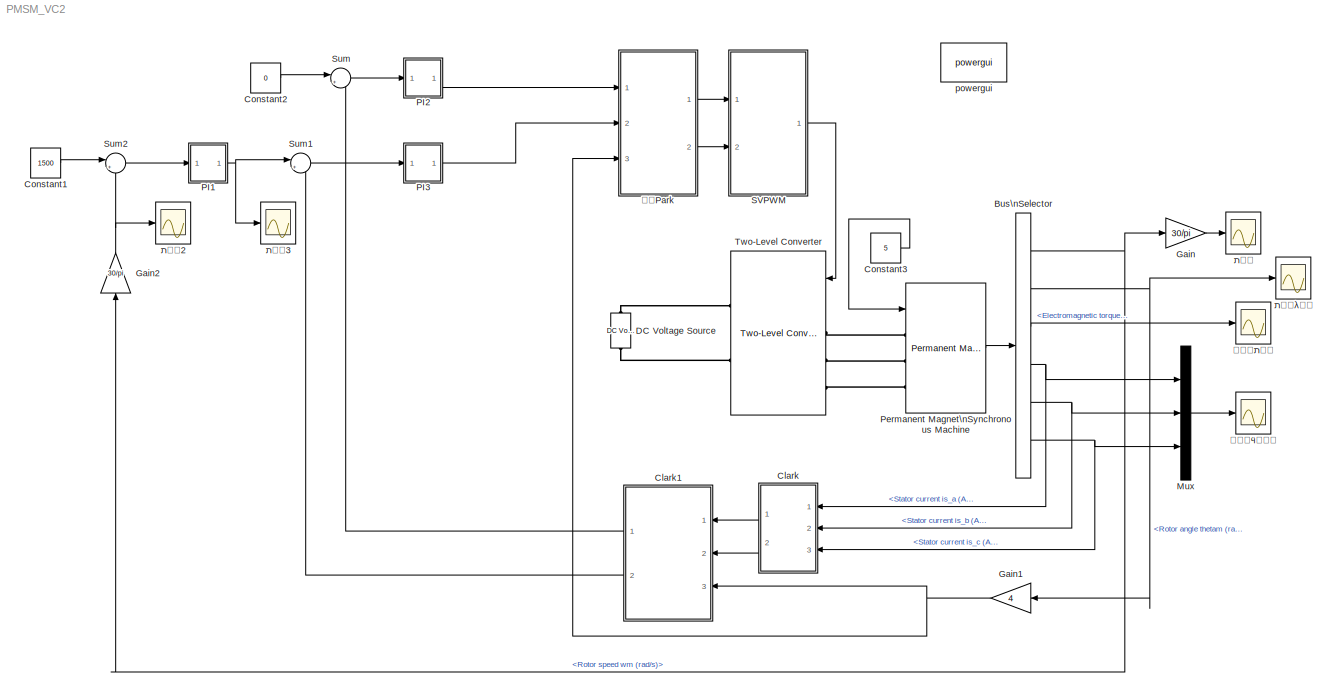
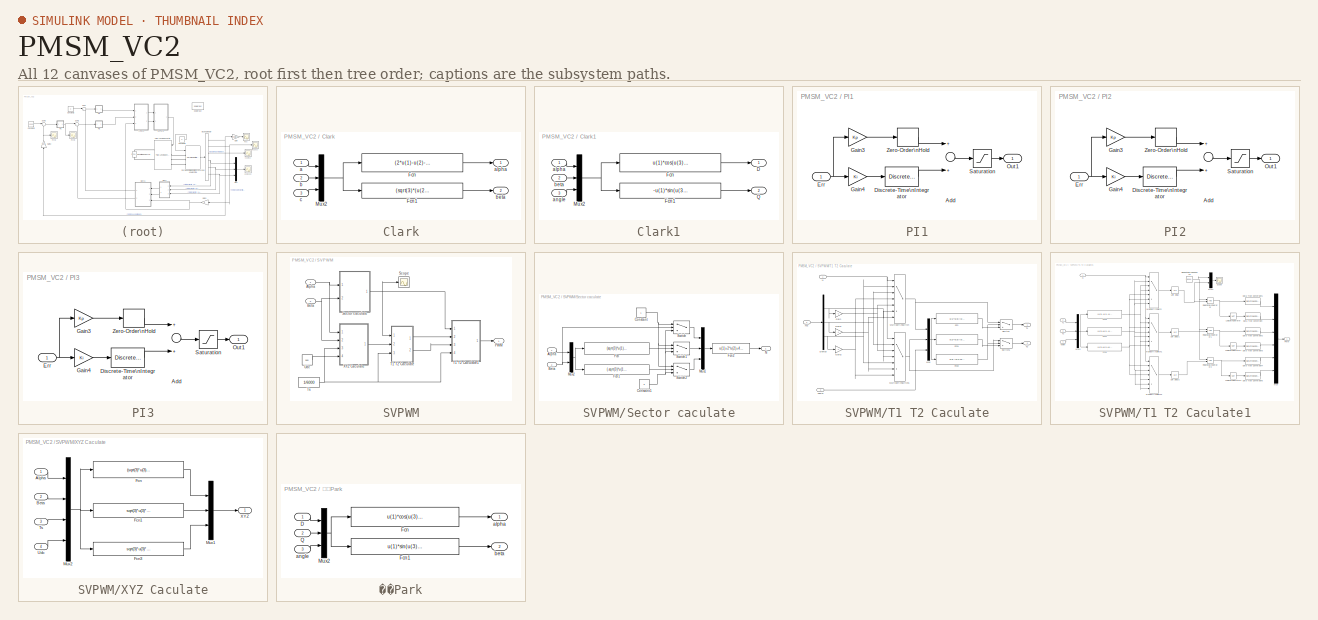
[diagram: thumbnail index - all 12 canvases of the model, root first then tree order]
MODEL PMSM_VC2
KIND model
BLOCK [BusSelector] Bus\nSelector
  OutputSignals = Rotor speed wm (rad/s),Rotor angle thetam (rad),Electromagnetic torque Te (N*m),Stator current is_a (A),Stator current is_b (A),Stator current is_c (A)
  Ports = [1, 6]
  SID = 1
BLOCK [SubSystem] Clark
  FunctionWithSeparateData = off
  MaskHideContents = off
  MinAlgLoopOccurrences = off
  Opaque = off
  Ports = [3, 2]
  PropExecContextOutsideSubsystem = off
  RTWSystemCode = Auto
  RequestExecContextInheritance = off
  SID = 40
BLOCK [Fcn] Clark/Fcn
  Expr = (2*u(1)-u(2)-u(3))/3
  SID = 44
BLOCK [Fcn] Clark/Fcn1
  Expr = (sqrt(3)*(u(2)-u(3)))/3
  SID = 45
BLOCK [Mux] Clark/Mux2
  DisplayOption = bar
  Inputs = 3
  Ports = [3, 1]
  SID = 46
BLOCK [Inport] Clark/a
  IconDisplay = Port number
  SID = 41
BLOCK [Outport] Clark/alpha
  IconDisplay = Port number
  SID = 48
BLOCK [Inport] Clark/b
  IconDisplay = Port number
  Port = 2
  SID = 42
BLOCK [Outport] Clark/beta
  IconDisplay = Port number
  Port = 2
  SID = 47
BLOCK [Inport] Clark/c
  IconDisplay = Port number
  Port = 3
  SID = 43
BLOCK [SubSystem] Clark1
  FunctionWithSeparateData = off
  MaskHideContents = off
  MinAlgLoopOccurrences = off
  Opaque = off
  Ports = [3, 2]
  PropExecContextOutsideSubsystem = off
  RTWSystemCode = Auto
  RequestExecContextInheritance = off
  SID = 49
BLOCK [Outport] Clark1/D
  IconDisplay = Port number
  SID = 57
BLOCK [Fcn] Clark1/Fcn
  Expr = u(1)*cos(u(3))+u(2)*sin(u(3))
  SID = 53
BLOCK [Fcn] Clark1/Fcn1
  Expr = -u(1)*sin(u(3))+u(2)*cos(u(3))
  SID = 54
BLOCK [Mux] Clark1/Mux2
  DisplayOption = bar
  Inputs = 3
  Ports = [3, 1]
  SID = 55
BLOCK [Outport] Clark1/Q
  IconDisplay = Port number
  Port = 2
  SID = 56
BLOCK [Inport] Clark1/alpha
  IconDisplay = Port number
  SID = 50
BLOCK [Inport] Clark1/angle
  IconDisplay = Port number
  Port = 3
  SID = 52
BLOCK [Inport] Clark1/beta
  IconDisplay = Port number
  Port = 2
  SID = 51
BLOCK [Constant] Constant1
  SID = 3
  Value = 1500
BLOCK [Constant] Constant2
  SID = 4
  Value = 0
BLOCK [Constant] Constant3
  SID = 195
  Value = 5
BLOCK [Reference] DC Voltage Source  REF=powerlib/Electrical\nSources/DC Voltage Source
  Amplitude = 560
  Measurements = None
  Ports = [0, 0, 0, 0, 0, 1, 1]
  SID = 5
  SourceBlock = powerlib/Electrical\nSources/DC Voltage Source
  SourceType = DC Voltage Source
BLOCK [Gain] Gain
  Gain = 30/pi
  OutDataTypeMode = Inherit via internal rule
  OutDataTypeStr = Inherit: Inherit via internal rule
  ParamDataTypeStr = Inherit: Inherit via internal rule
  ParameterDataTypeMode = Inherit via internal rule
  SID = 8
  SaturateOnIntegerOverflow = off
BLOCK [Gain] Gain1
  Gain = 4
  OutDataTypeMode = Inherit via internal rule
  OutDataTypeStr = Inherit: Inherit via internal rule
  ParamDataTypeStr = Inherit: Inherit via internal rule
  ParameterDataTypeMode = Inherit via internal rule
  SID = 9
  SaturateOnIntegerOverflow = off
BLOCK [Gain] Gain2
  Gain = 30/pi
  OutDataTypeMode = Inherit via internal rule
  OutDataTypeStr = Inherit: Inherit via internal rule
  ParamDataTypeStr = Inherit: Inherit via internal rule
  ParameterDataTypeMode = Inherit via internal rule
  SID = 10
  SaturateOnIntegerOverflow = off
BLOCK [Mux] Mux
  DisplayOption = bar
  Inputs = 3
  Ports = [3, 1]
  SID = 11
BLOCK [SubSystem] PI1
  FunctionWithSeparateData = off
  MaskCallbackString = ||||
  MaskDisplay = disp('PI')
  MaskEnableString = on,on,on,on,on
  MaskHideContents = off
  MaskIconFrame = on
  MaskIconOpaque = on
  MaskIconRotate = none
  MaskIconUnits = autoscale
  MaskInitialization = Upperlimit = Par_limits(1);\nLowerlimit = Par_limits(2);
  MaskPortRotate = default
  MaskPromptString = Proportional gain(Kp)|Integral gain(Ki)|Output limits:[Upper Lower]|Output initial value|Sample time
  MaskStyleString = edit,edit,edit,edit,edit
  MaskToolTipString = on,on,on,on,on
  MaskTunableValueString = on,on,on,on,on
  MaskValueString = 0.5|80|[30 -30]|0|1e-6
  MaskVariables = Kp=@1;Ki=@2;Par_limits=@3;Init=@4;Ts=@5;
  MaskVisibilityString = on,on,on,on,on
  MinAlgLoopOccurrences = off
  Opaque = off
  Ports = [1, 1]
  PropExecContextOutsideSubsystem = off
  RTWSystemCode = Auto
  RequestExecContextInheritance = off
  SID = 245
BLOCK [Sum] PI1/Add
  InputSameDT = off
  OutDataTypeMode = Inherit via internal rule
  OutDataTypeStr = Inherit: Inherit via internal rule
  Ports = [2, 1]
  SID = 265
  SaturateOnIntegerOverflow = off
BLOCK [DiscreteIntegrator] PI1/Discrete-Time\nIntegrator
  ICPrevOutput = DiscIntNeverNeededParam
  ICPrevScaledInput = DiscIntNeverNeededParam
  InitialCondition = Init
  LimitOutput = on
  LowerSaturationLimit = Lowerlimit
  Ports = [1, 1]
  SID = 247
  SampleTime = Ts
  UpperSaturationLimit = Upperlimit
BLOCK [Inport] PI1/Err
  IconDisplay = Port number
  SID = 246
BLOCK [Gain] PI1/Gain3
  Gain = Kp
  OutDataTypeMode = Inherit via internal rule
  OutDataTypeStr = Inherit: Inherit via internal rule
  ParamDataTypeStr = Inherit: Inherit via internal rule
  ParameterDataTypeMode = Inherit via internal rule
  SID = 248
  SaturateOnIntegerOverflow = off
BLOCK [Gain] PI1/Gain4
  Gain = Ki
  OutDataTypeMode = Inherit via internal rule
  OutDataTypeStr = Inherit: Inherit via internal rule
  ParamDataTypeStr = Inherit: Inherit via internal rule
  ParameterDataTypeMode = Inherit via internal rule
  SID = 249
  SaturateOnIntegerOverflow = off
BLOCK [Outport] PI1/Out1
  IconDisplay = Port number
  SID = 253
BLOCK [Saturate] PI1/Saturation
  LowerLimit = Lowerlimit
  SID = 251
  UpperLimit = Upperlimit
BLOCK [ZeroOrderHold] PI1/Zero-Order\nHold
  SID = 252
  SampleTime = Ts
BLOCK [SubSystem] PI2
  FunctionWithSeparateData = off
  MaskCallbackString = ||||
  MaskDisplay = disp('PI')
  MaskEnableString = on,on,on,on,on
  MaskHideContents = off
  MaskIconFrame = on
  MaskIconOpaque = on
  MaskIconRotate = none
  MaskIconUnits = autoscale
  MaskInitialization = Upperlimit = Par_limits(1);\nLowerlimit = Par_limits(2);
  MaskPortRotate = default
  MaskPromptString = Proportional gain(Kp)|Integral gain(Ki)|Output limits:[Upper Lower]|Output initial value|Sample time
  MaskStyleString = edit,edit,edit,edit,edit
  MaskToolTipString = on,on,on,on,on
  MaskTunableValueString = on,on,on,on,on
  MaskValueString = 4|60|[150 -150]|0|1e-6
  MaskVariables = Kp=@1;Ki=@2;Par_limits=@3;Init=@4;Ts=@5;
  MaskVisibilityString = on,on,on,on,on
  MinAlgLoopOccurrences = off
  Opaque = off
  Ports = [1, 1]
  PropExecContextOutsideSubsystem = off
  RTWSystemCode = Auto
  RequestExecContextInheritance = off
  SID = 235
BLOCK [Sum] PI2/Add
  InputSameDT = off
  OutDataTypeMode = Inherit via internal rule
  OutDataTypeStr = Inherit: Inherit via internal rule
  Ports = [2, 1]
  SID = 264
  SaturateOnIntegerOverflow = off
BLOCK [DiscreteIntegrator] PI2/Discrete-Time\nIntegrator
  ICPrevOutput = DiscIntNeverNeededParam
  ICPrevScaledInput = DiscIntNeverNeededParam
  InitialCondition = Init
  LimitOutput = on
  LowerSaturationLimit = Lowerlimit
  Ports = [1, 1]
  SID = 237
  SampleTime = Ts
  UpperSaturationLimit = Upperlimit
BLOCK [Inport] PI2/Err
  IconDisplay = Port number
  SID = 236
BLOCK [Gain] PI2/Gain3
  Gain = Kp
  OutDataTypeMode = Inherit via internal rule
  OutDataTypeStr = Inherit: Inherit via internal rule
  ParamDataTypeStr = Inherit: Inherit via internal rule
  ParameterDataTypeMode = Inherit via internal rule
  SID = 238
  SaturateOnIntegerOverflow = off
BLOCK [Gain] PI2/Gain4
  Gain = Ki
  OutDataTypeMode = Inherit via internal rule
  OutDataTypeStr = Inherit: Inherit via internal rule
  ParamDataTypeStr = Inherit: Inherit via internal rule
  ParameterDataTypeMode = Inherit via internal rule
  SID = 239
  SaturateOnIntegerOverflow = off
BLOCK [Outport] PI2/Out1
  IconDisplay = Port number
  SID = 243
BLOCK [Saturate] PI2/Saturation
  LowerLimit = Lowerlimit
  SID = 241
  UpperLimit = Upperlimit
BLOCK [ZeroOrderHold] PI2/Zero-Order\nHold
  SID = 242
  SampleTime = Ts
BLOCK [SubSystem] PI3
  FunctionWithSeparateData = off
  MaskCallbackString = ||||
  MaskDisplay = disp('PI')
  MaskEnableString = on,on,on,on,on
  MaskHideContents = off
  MaskIconFrame = on
  MaskIconOpaque = on
  MaskIconRotate = none
  MaskIconUnits = autoscale
  MaskInitialization = Upperlimit = Par_limits(1);\nLowerlimit = Par_limits(2);
  MaskPortRotate = default
  MaskPromptString = Proportional gain(Kp)|Integral gain(Ki)|Output limits:[Upper Lower]|Output initial value|Sample time
  MaskStyleString = edit,edit,edit,edit,edit
  MaskToolTipString = on,on,on,on,on
  MaskTunableValueString = on,on,on,on,on
  MaskValueString = 4|60|[150 -150]|0|1e-6
  MaskVariables = Kp=@1;Ki=@2;Par_limits=@3;Init=@4;Ts=@5;
  MaskVisibilityString = on,on,on,on,on
  MinAlgLoopOccurrences = off
  Opaque = off
  Ports = [1, 1]
  PropExecContextOutsideSubsystem = off
  RTWSystemCode = Auto
  RequestExecContextInheritance = off
  SID = 254
BLOCK [Sum] PI3/Add
  InputSameDT = off
  OutDataTypeMode = Inherit via internal rule
  OutDataTypeStr = Inherit: Inherit via internal rule
  Ports = [2, 1]
  SID = 263
  SaturateOnIntegerOverflow = off
BLOCK [DiscreteIntegrator] PI3/Discrete-Time\nIntegrator
  ICPrevOutput = DiscIntNeverNeededParam
  ICPrevScaledInput = DiscIntNeverNeededParam
  InitialCondition = Init
  LimitOutput = on
  LowerSaturationLimit = Lowerlimit
  Ports = [1, 1]
  SID = 256
  SampleTime = Ts
  UpperSaturationLimit = Upperlimit
BLOCK [Inport] PI3/Err
  IconDisplay = Port number
  SID = 255
BLOCK [Gain] PI3/Gain3
  Gain = Kp
  OutDataTypeMode = Inherit via internal rule
  OutDataTypeStr = Inherit: Inherit via internal rule
  ParamDataTypeStr = Inherit: Inherit via internal rule
  ParameterDataTypeMode = Inherit via internal rule
  SID = 257
  SaturateOnIntegerOverflow = off
BLOCK [Gain] PI3/Gain4
  Gain = Ki
  OutDataTypeMode = Inherit via internal rule
  OutDataTypeStr = Inherit: Inherit via internal rule
  ParamDataTypeStr = Inherit: Inherit via internal rule
  ParameterDataTypeMode = Inherit via internal rule
  SID = 258
  SaturateOnIntegerOverflow = off
BLOCK [Outport] PI3/Out1
  IconDisplay = Port number
  SID = 262
BLOCK [Saturate] PI3/Saturation
  LowerLimit = Lowerlimit
  SID = 260
  UpperLimit = Upperlimit
BLOCK [ZeroOrderHold] PI3/Zero-Order\nHold
  SID = 261
  SampleTime = Ts
BLOCK [Reference] Permanent Magnet\nSynchronous Machine  REF=powerlib/Machines/Permanent Magnet\nSynchronous Machine
  Flat = 120
  Flux = 0.1119
  FluxDistribution = Sinusoidal
  Inductance = 8.5e-3
  InitialConditions = [0,0, 0,0]
  InitialConditions5ph = [0 0 0 0 0 0]
  La = 0.00097
  MachineConstant = Flux linkage established by magnets (V.s)
  MeasurementBus = off
  Mechanical = [0.0016 0.0002024 4 0]
  MechanicalLoad = Torque Tm
  NbPhases = 3
  PolePairs = 4
  Ports = [1, 1, 0, 0, 0, 3]
  PresetModel = 11:  26.13 Nm 560 Vdc 3000 RPM - 27.3 Nm
  RefAngle = Aligned with phase A axis (original Park)
  Resistance = 0.11
  RotorType = Round
  SID = 16
  ShowDetailedParameters = on
  SourceBlock = powerlib/Machines/Permanent Magnet\nSynchronous Machine
  SourceType = Permanent Magnet Synchronous Machine
  TorqueCst = 0.6714
  TsBlock = -1
  TsPowergui = 0
  VoltageCst = 81.1857
  dqInductances = [8.5e-3,8.5e-3]
BLOCK [SubSystem] SVPWM
  FunctionWithSeparateData = off
  MaskHideContents = off
  MinAlgLoopOccurrences = off
  Opaque = off
  Ports = [2, 1]
  PropExecContextOutsideSubsystem = off
  RTWSystemCode = Auto
  RequestExecContextInheritance = off
  SID = 85
BLOCK [Inport] SVPWM/Alpha
  IconDisplay = Port number
  SID = 86
BLOCK [Inport] SVPWM/Beta
  IconDisplay = Port number
  Port = 2
  SID = 87
BLOCK [Outport] SVPWM/PWM
  IconDisplay = Port number
  SID = 189
BLOCK [Scope] SVPWM/Scope
  DataFormat = StructureWithTime
  Decimation = 1
  Grid = on
  LimitDataPoints = off
  MaxDataPoints = 5000
  Ports = [1]
  SID = 194
  SampleInput = off
  SampleTime = -1
  SaveName = ScopeData6
  SaveToWorkspace = off
  TickLabels = OneTimeTick
  TimeRange = auto
  YMax = 6.625
  YMin = 0.375
  ZoomMode = on
BLOCK [SubSystem] SVPWM/Sector caculate
  FunctionWithSeparateData = off
  MaskHideContents = off
  MinAlgLoopOccurrences = off
  Opaque = off
  Ports = [2, 1]
  PropExecContextOutsideSubsystem = off
  RTWSystemCode = Auto
  RequestExecContextInheritance = off
  SID = 102
BLOCK [Inport] SVPWM/Sector caculate/Alpha
  IconDisplay = Port number
  SID = 103
BLOCK [Inport] SVPWM/Sector caculate/Beta
  IconDisplay = Port number
  Port = 2
  SID = 104
BLOCK [Constant] SVPWM/Sector caculate/Constant
  SID = 97
BLOCK [Constant] SVPWM/Sector caculate/Constant1
  SID = 98
  Value = 0
BLOCK [Fcn] SVPWM/Sector caculate/Fcn
  Expr = (sqrt(3)*u(1)-u(2))/2
  SID = 89
BLOCK [Fcn] SVPWM/Sector caculate/Fcn1
  Expr = (-sqrt(3)*u(1)-u(2))/2
  SID = 90
BLOCK [Fcn] SVPWM/Sector caculate/Fcn2
  Expr = u(1)+2*u(2)+4*u(3)
  SID = 100
BLOCK [Mux] SVPWM/Sector caculate/Mux1
  DisplayOption = bar
  Inputs = 3
  Ports = [3, 1]
  SID = 99
BLOCK [Mux] SVPWM/Sector caculate/Mux2
  DisplayOption = bar
  Inputs = 2
  Ports = [2, 1]
  SID = 91
BLOCK [Outport] SVPWM/Sector caculate/N
  IconDisplay = Port number
  SID = 105
BLOCK [Switch] SVPWM/Sector caculate/Switch
  Criteria = u2 > Threshold
  InputSameDT = off
  SID = 94
  SaturateOnIntegerOverflow = off
BLOCK [Switch] SVPWM/Sector caculate/Switch1
  Criteria = u2 > Threshold
  InputSameDT = off
  SID = 95
  SaturateOnIntegerOverflow = off
BLOCK [Switch] SVPWM/Sector caculate/Switch2
  Criteria = u2 > Threshold
  InputSameDT = off
  SID = 96
  SaturateOnIntegerOverflow = off
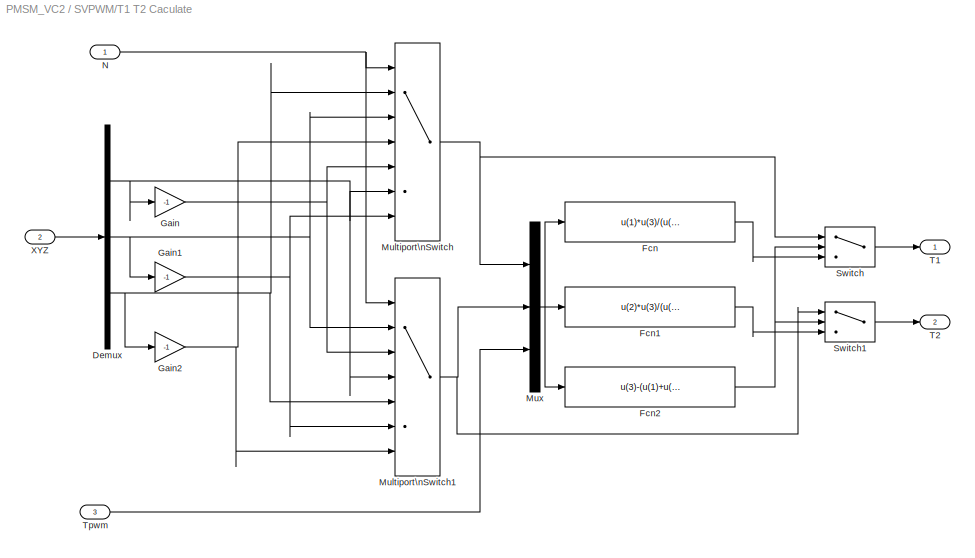
BLOCK [SubSystem] SVPWM/T1 T2 Caculate
  FunctionWithSeparateData = off
  MaskHideContents = off
  MinAlgLoopOccurrences = off
  Opaque = off
  Ports = [3, 2]
  PropExecContextOutsideSubsystem = off
  RTWSystemCode = Auto
  RequestExecContextInheritance = off
  SID = 123
BLOCK [Demux] SVPWM/T1 T2 Caculate/Demux
  DisplayOption = bar
  Outputs = 3
  Ports = [1, 3]
  SID = 136
BLOCK [Fcn] SVPWM/T1 T2 Caculate/Fcn
  Expr = u(1)*u(3)/(u(1)+u(2))
  SID = 142
BLOCK [Fcn] SVPWM/T1 T2 Caculate/Fcn1
  Expr = u(2)*u(3)/(u(1)+u(2))
  SID = 143
BLOCK [Fcn] SVPWM/T1 T2 Caculate/Fcn2
  Expr = u(3)-(u(1)+u(2))
  SID = 144
BLOCK [Gain] SVPWM/T1 T2 Caculate/Gain
  Gain = -1
  OutDataTypeMode = Inherit via internal rule
  OutDataTypeStr = Inherit: Inherit via internal rule
  ParamDataTypeStr = Inherit: Inherit via internal rule
  ParameterDataTypeMode = Inherit via internal rule
  SID = 137
  SaturateOnIntegerOverflow = off
BLOCK [Gain] SVPWM/T1 T2 Caculate/Gain1
  Gain = -1
  OutDataTypeMode = Inherit via internal rule
  OutDataTypeStr = Inherit: Inherit via internal rule
  ParamDataTypeStr = Inherit: Inherit via internal rule
  ParameterDataTypeMode = Inherit via internal rule
  SID = 138
  SaturateOnIntegerOverflow = off
BLOCK [Gain] SVPWM/T1 T2 Caculate/Gain2
  Gain = -1
  OutDataTypeMode = Inherit via internal rule
  OutDataTypeStr = Inherit: Inherit via internal rule
  ParamDataTypeStr = Inherit: Inherit via internal rule
  ParameterDataTypeMode = Inherit via internal rule
  SID = 139
  SaturateOnIntegerOverflow = off
BLOCK [MultiPortSwitch] SVPWM/T1 T2 Caculate/Multiport\nSwitch
  InputSameDT = off
  Inputs = 6
  Ports = [7, 1]
  SID = 140
  SaturateOnIntegerOverflow = off
BLOCK [MultiPortSwitch] SVPWM/T1 T2 Caculate/Multiport\nSwitch1
  InputSameDT = off
  Inputs = 6
  Ports = [7, 1]
  SID = 141
  SaturateOnIntegerOverflow = off
BLOCK [Mux] SVPWM/T1 T2 Caculate/Mux
  DisplayOption = bar
  Inputs = 3
  Ports = [3, 1]
  SID = 147
BLOCK [Inport] SVPWM/T1 T2 Caculate/N
  IconDisplay = Port number
  SID = 124
BLOCK [Switch] SVPWM/T1 T2 Caculate/Switch
  Criteria = u2 > Threshold
  InputSameDT = off
  SID = 145
  SaturateOnIntegerOverflow = off
BLOCK [Switch] SVPWM/T1 T2 Caculate/Switch1
  Criteria = u2 > Threshold
  InputSameDT = off
  SID = 146
  SaturateOnIntegerOverflow = off
BLOCK [Outport] SVPWM/T1 T2 Caculate/T1
  IconDisplay = Port number
  SID = 133
BLOCK [Outport] SVPWM/T1 T2 Caculate/T2
  IconDisplay = Port number
  Port = 2
  SID = 135
BLOCK [Inport] SVPWM/T1 T2 Caculate/Tpwm
  IconDisplay = Port number
  Port = 3
  SID = 126
BLOCK [Inport] SVPWM/T1 T2 Caculate/XYZ
  IconDisplay = Port number
  Port = 2
  SID = 125
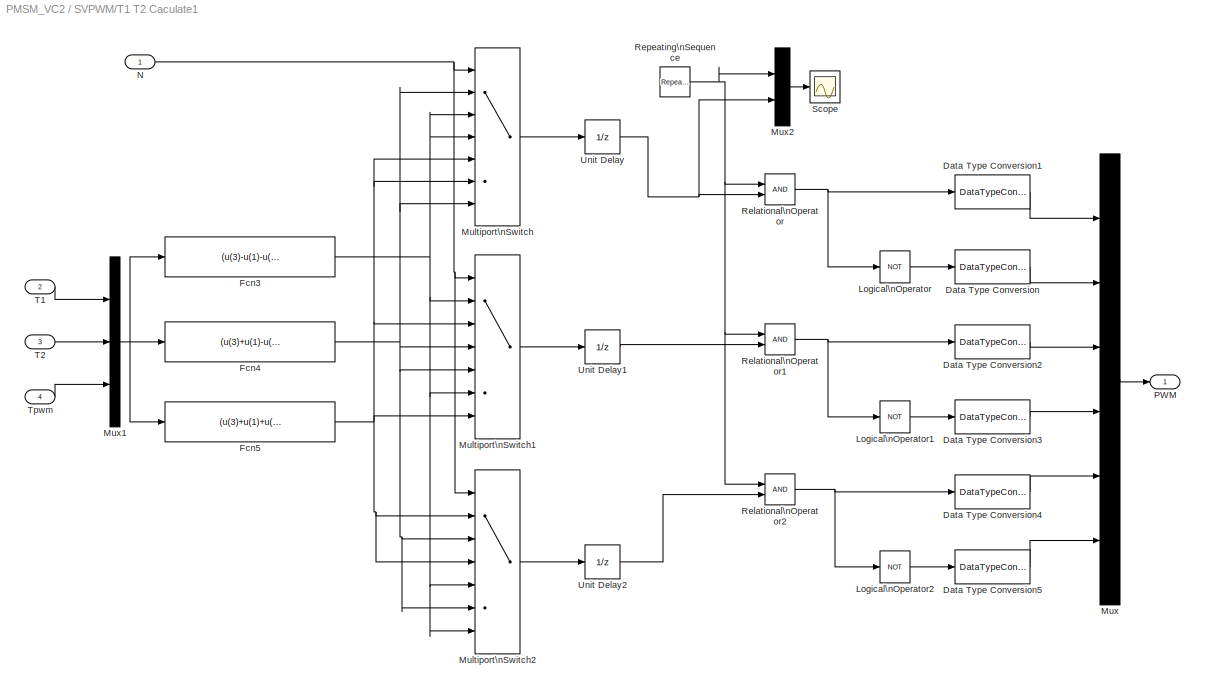
BLOCK [SubSystem] SVPWM/T1 T2 Caculate1
  FunctionWithSeparateData = off
  MaskHideContents = off
  MinAlgLoopOccurrences = off
  Opaque = off
  Ports = [4, 1]
  PropExecContextOutsideSubsystem = off
  RTWSystemCode = Auto
  RequestExecContextInheritance = off
  SID = 148
BLOCK [DataTypeConversion] SVPWM/T1 T2 Caculate1/Data Type Conversion
  OutDataTypeMode = double
  OutDataTypeStr = double
  RndMeth = Floor
  SID = 182
  SaturateOnIntegerOverflow = off
BLOCK [DataTypeConversion] SVPWM/T1 T2 Caculate1/Data Type Conversion1
  OutDataTypeMode = double
  OutDataTypeStr = double
  RndMeth = Floor
  SID = 183
  SaturateOnIntegerOverflow = off
BLOCK [DataTypeConversion] SVPWM/T1 T2 Caculate1/Data Type Conversion2
  OutDataTypeMode = double
  OutDataTypeStr = double
  RndMeth = Floor
  SID = 184
  SaturateOnIntegerOverflow = off
BLOCK [DataTypeConversion] SVPWM/T1 T2 Caculate1/Data Type Conversion3
  OutDataTypeMode = double
  OutDataTypeStr = double
  RndMeth = Floor
  SID = 185
  SaturateOnIntegerOverflow = off
BLOCK [DataTypeConversion] SVPWM/T1 T2 Caculate1/Data Type Conversion4
  OutDataTypeMode = double
  OutDataTypeStr = double
  RndMeth = Floor
  SID = 186
  SaturateOnIntegerOverflow = off
BLOCK [DataTypeConversion] SVPWM/T1 T2 Caculate1/Data Type Conversion5
  OutDataTypeMode = double
  OutDataTypeStr = double
  RndMeth = Floor
  SID = 187
  SaturateOnIntegerOverflow = off
BLOCK [Fcn] SVPWM/T1 T2 Caculate1/Fcn3
  Expr = (u(3)-u(1)-u(2))/4
  SID = 171
BLOCK [Fcn] SVPWM/T1 T2 Caculate1/Fcn4
  Expr = (u(3)+u(1)-u(2))/4
  SID = 172
BLOCK [Fcn] SVPWM/T1 T2 Caculate1/Fcn5
  Expr = (u(3)+u(1)+u(2))/4
  SID = 173
BLOCK [Logic] SVPWM/T1 T2 Caculate1/Logical\nOperator
  AllPortsSameDT = off
  Operator = NOT
  OutDataTypeMode = boolean
  OutDataTypeStr = boolean
  Ports = [1, 1]
  SID = 174
BLOCK [Logic] SVPWM/T1 T2 Caculate1/Logical\nOperator1
  AllPortsSameDT = off
  Operator = NOT
  OutDataTypeMode = boolean
  OutDataTypeStr = boolean
  Ports = [1, 1]
  SID = 180
BLOCK [Logic] SVPWM/T1 T2 Caculate1/Logical\nOperator2
  AllPortsSameDT = off
  Operator = NOT
  OutDataTypeMode = boolean
  OutDataTypeStr = boolean
  Ports = [1, 1]
  SID = 181
BLOCK [MultiPortSwitch] SVPWM/T1 T2 Caculate1/Multiport\nSwitch
  InputSameDT = off
  Inputs = 6
  Ports = [7, 1]
  SID = 159
  SaturateOnIntegerOverflow = off
BLOCK [MultiPortSwitch] SVPWM/T1 T2 Caculate1/Multiport\nSwitch1
  InputSameDT = off
  Inputs = 6
  Ports = [7, 1]
  SID = 160
  SaturateOnIntegerOverflow = off
BLOCK [MultiPortSwitch] SVPWM/T1 T2 Caculate1/Multiport\nSwitch2
  InputSameDT = off
  Inputs = 6
  Ports = [7, 1]
  SID = 166
  SaturateOnIntegerOverflow = off
BLOCK [Mux] SVPWM/T1 T2 Caculate1/Mux
  DisplayOption = bar
  Inputs = 6
  Ports = [6, 1]
  SID = 179
BLOCK [Mux] SVPWM/T1 T2 Caculate1/Mux1
  DisplayOption = bar
  Inputs = 3
  Ports = [3, 1]
  SID = 167
BLOCK [Mux] SVPWM/T1 T2 Caculate1/Mux2
  DisplayOption = bar
  Inputs = 2
  Ports = [2, 1]
  SID = 192
BLOCK [Inport] SVPWM/T1 T2 Caculate1/N
  IconDisplay = Port number
  SID = 149
BLOCK [Outport] SVPWM/T1 T2 Caculate1/PWM
  IconDisplay = Port number
  SID = 164
BLOCK [RelationalOperator] SVPWM/T1 T2 Caculate1/Relational\nOperator
  InputSameDT = off
  LogicOutDataTypeMode = boolean
  OutDataTypeStr = boolean
  Ports = [2, 1]
  SID = 175
BLOCK [RelationalOperator] SVPWM/T1 T2 Caculate1/Relational\nOperator1
  InputSameDT = off
  LogicOutDataTypeMode = boolean
  OutDataTypeStr = boolean
  Ports = [2, 1]
  SID = 176
BLOCK [RelationalOperator] SVPWM/T1 T2 Caculate1/Relational\nOperator2
  InputSameDT = off
  LogicOutDataTypeMode = boolean
  OutDataTypeStr = boolean
  Ports = [2, 1]
  SID = 177
BLOCK [Reference] SVPWM/T1 T2 Caculate1/Repeating\nSequence  REF=simulink/Sources/Repeating\nSequence
  Ports = [0, 1]
  SID = 188
  SourceBlock = simulink/Sources/Repeating\nSequence
  SourceType = Repeating table
  rep_seq_t = [0 1/12000 1/6000]
  rep_seq_y = [0 1/12000 0]
BLOCK [Scope] SVPWM/T1 T2 Caculate1/Scope
  DataFormat = StructureWithTime
  Decimation = 1
  Grid = on
  LimitDataPoints = off
  MaxDataPoints = 5000
  Ports = [1]
  SID = 193
  SampleInput = off
  SampleTime = -1
  SaveName = ScopeData5
  SaveToWorkspace = off
  TickLabels = OneTimeTick
  TimeRange = auto
  YMax = 0.00009
  YMin = -0.00001
  ZoomMode = on
BLOCK [Inport] SVPWM/T1 T2 Caculate1/T1
  IconDisplay = Port number
  Port = 2
  SID = 150
BLOCK [Inport] SVPWM/T1 T2 Caculate1/T2
  IconDisplay = Port number
  Port = 3
  SID = 151
BLOCK [Inport] SVPWM/T1 T2 Caculate1/Tpwm
  IconDisplay = Port number
  Port = 4
  SID = 170
BLOCK [UnitDelay] SVPWM/T1 T2 Caculate1/Unit Delay
  SID = 227
  SampleTime = 1/6000
BLOCK [UnitDelay] SVPWM/T1 T2 Caculate1/Unit Delay1
  SID = 229
  SampleTime = 1/6000
BLOCK [UnitDelay] SVPWM/T1 T2 Caculate1/Unit Delay2
  SID = 230
  SampleTime = 1/6000
BLOCK [Constant] SVPWM/Ts
  SID = 191
  Value = 1/6000
BLOCK [Constant] SVPWM/Udc
  SID = 190
  Value = 560
BLOCK [SubSystem] SVPWM/XYZ Caculate
  FunctionWithSeparateData = off
  MaskHideContents = off
  MinAlgLoopOccurrences = off
  Opaque = off
  Ports = [4, 1]
  PropExecContextOutsideSubsystem = off
  RTWSystemCode = Auto
  RequestExecContextInheritance = off
  SID = 106
BLOCK [Inport] SVPWM/XYZ Caculate/Alpha
  IconDisplay = Port number
  SID = 107
BLOCK [Inport] SVPWM/XYZ Caculate/Beta
  IconDisplay = Port number
  Port = 2
  SID = 108
BLOCK [Fcn] SVPWM/XYZ Caculate/Fcn
  Expr = (sqrt(3)*u(3)*u(2))/u(4)
  SID = 111
BLOCK [Fcn] SVPWM/XYZ Caculate/Fcn1
  Expr = sqrt(3)*u(3)*(sqrt(3)*u(1)+u(2))/(2*u(4))
  SID = 112
BLOCK [Fcn] SVPWM/XYZ Caculate/Fcn3
  Expr = sqrt(3)*u(3)*(-sqrt(3)*u(1)+u(2))/(2*u(4))
  SID = 122
BLOCK [Mux] SVPWM/XYZ Caculate/Mux1
  DisplayOption = bar
  Inputs = 3
  Ports = [3, 1]
  SID = 114
BLOCK [Mux] SVPWM/XYZ Caculate/Mux2
  DisplayOption = bar
  Ports = [4, 1]
  SID = 115
BLOCK [Inport] SVPWM/XYZ Caculate/Ts
  IconDisplay = Port number
  Port = 3
  SID = 120
BLOCK [Inport] SVPWM/XYZ Caculate/Udc
  IconDisplay = Port number
  Port = 4
  SID = 121
BLOCK [Outport] SVPWM/XYZ Caculate/XYZ
  IconDisplay = Port number
  SID = 119
BLOCK [Sum] Sum
  IconShape = round
  InputSameDT = off
  Inputs = |+-
  OutDataTypeMode = Inherit via internal rule
  OutDataTypeStr = Inherit: Inherit via internal rule
  Ports = [2, 1]
  SID = 18
  SaturateOnIntegerOverflow = off
BLOCK [Sum] Sum1
  IconShape = round
  InputSameDT = off
  Inputs = |+-
  OutDataTypeMode = Inherit via internal rule
  OutDataTypeStr = Inherit: Inherit via internal rule
  Ports = [2, 1]
  SID = 19
  SaturateOnIntegerOverflow = off
BLOCK [Sum] Sum2
  IconShape = round
  InputSameDT = off
  Inputs = |+-
  OutDataTypeMode = Inherit via internal rule
  OutDataTypeStr = Inherit: Inherit via internal rule
  Ports = [2, 1]
  SID = 20
  SaturateOnIntegerOverflow = off
BLOCK [Reference] Two-Level Converter  REF=powerlib/Power\nElectronics/Two-Level Converter
  Cs = inf
  Cs_Diode = inf
  ModelType = Switching devices
  Ports = [2, 0, 0, 0, 0, 3, 2]
  Ron = 1e-3
  Ron_Diode = 1e-3
  Rs = 1e6
  Rs_CurrentSource = inf
  Rs_Diode = 1e6
  SID = 21
  SourceBlock = powerlib/Power\nElectronics/Two-Level Converter
  SourceType = Two-Level Converter
  Vf_Diode = 1e-3
  Vforward = [0,0]
BLOCK [Reference] powergui  REF=powerlib/powergui
  DisableRonSwitches = off
  DisableSnubberDevices = off
  DisableVfSwitches = off
  DisplayEquations = off
  DisplayStyle = 1
  EnableUseOfTLC = off
  ErrMax = 1e-4
  ExternalGateDelay = off
  Frange = [0:2:500]
  FreqAxis = off
  FunctionMessages = off
  HookPort = off
  Interpol = off
  Iterations = 50
  MaxFrequency = 1000
  Pbase = 100e6
  Ports = []
  Priority = 1
  ResistiveCurrentMeasurement = off
  RestoreLinks = warning
  RmsSteady = 1
  SID = 24
  SPID = off
  SampleTime = 1e-6
  ShowGrid = off
  SolverType = Tustin/Backward Euler (TBE)
  SourceBlock = powerlib/powergui
  SourceType = PSB option menu block
  StartTime = 0.0
  SwTol = 0
  Ts = 10
  UnitsV = kV
  UnitsW = MW
  UserDataPersistent = on
  Xlog = on
  Ylog = off
  ZoomFFT = off
  buscounter = 0
  cycles = 1
  display = off
  echomessages = off
  frequency = 60
  frequencyindice = 0
  frequencyindicesteady = 1
  fundamental = 60
  methode = off
  save = off
  structure = 0
  variable = ZData
  x0status = blocks
BLOCK [Scope] 电磁转矩
  DataFormat = Array
  Decimation = 1
  Grid = on
  LimitDataPoints = off
  MaxDataPoints = 5000
  Ports = [1]
  SID = 26
  SampleInput = off
  SampleTime = -1
  SaveName = ScopeData2
  SaveToWorkspace = off
  TickLabels = OneTimeTick
  TimeRange = auto
  YMax = 34.86513
  YMin = -3.8739
  ZoomMode = on
BLOCK [Scope] 定子电流
  DataFormat = Array
  Decimation = 1
  Grid = on
  LimitDataPoints = off
  MaxDataPoints = 5000
  Ports = [1]
  SID = 25
  SampleInput = off
  SampleTime = -1
  SaveName = ScopeData3
  SaveToWorkspace = off
  TickLabels = OneTimeTick
  TimeRange = auto
  YMax = 50.05576
  YMin = -49.88136
  ZoomMode = on
BLOCK [SubSystem] ·´Park
  FunctionWithSeparateData = off
  MaskHideContents = off
  MinAlgLoopOccurrences = off
  Opaque = off
  Ports = [3, 2]
  PropExecContextOutsideSubsystem = off
  RTWSystemCode = Auto
  RequestExecContextInheritance = off
  SID = 34
BLOCK [Inport] ·´Park/D
  IconDisplay = Port number
  SID = 35
BLOCK [Fcn] ·´Park/Fcn
  Expr = u(1)*cos(u(3))-u(2)*sin(u(3))
  SID = 30
BLOCK [Fcn] ·´Park/Fcn1
  Expr = u(1)*sin(u(3))+u(2)*cos(u(3))
  SID = 31
BLOCK [Mux] ·´Park/Mux2
  DisplayOption = bar
  Inputs = 3
  Ports = [3, 1]
  SID = 32
BLOCK [Inport] ·´Park/Q
  IconDisplay = Port number
  Port = 2
  SID = 36
BLOCK [Outport] ·´Park/alpha
  IconDisplay = Port number
  SID = 39
BLOCK [Inport] ·´Park/angle
  IconDisplay = Port number
  Port = 3
  SID = 37
BLOCK [Outport] ·´Park/beta
  IconDisplay = Port number
  Port = 2
  SID = 38
BLOCK [Scope] ×ªËÙ
  DataFormat = StructureWithTime
  Decimation = 1
  Grid = on
  LimitDataPoints = off
  MaxDataPoints = 5000
  Ports = [1]
  SID = 27
  SampleInput = off
  SampleTime = -1
  SaveName = ScopeData
  SaveToWorkspace = off
  TickLabels = OneTimeTick
  TimeRange = auto
  YMax = 1710.56254
  YMin = -196.87171
  ZoomMode = on
BLOCK [Scope] ×ªËÙ2
  DataFormat = StructureWithTime
  Decimation = 1
  Grid = on
  LimitDataPoints = off
  MaxDataPoints = 5000
  Ports = [1]
  SID = 29
  SampleInput = off
  SampleTime = -1
  SaveName = ScopeData4
  SaveToWorkspace = off
  TickLabels = OneTimeTick
  TimeRange = auto
  YMax = 1710.56254
  YMin = -196.87171
  ZoomMode = on
BLOCK [Scope] ×ªËÙ3
  DataFormat = StructureWithTime
  Decimation = 1
  Grid = on
  LimitDataPoints = off
  MaxDataPoints = 5000
  Ports = [1]
  SID = 231
  SampleInput = off
  SampleTime = -1
  SaveName = ScopeData7
  SaveToWorkspace = off
  TickLabels = OneTimeTick
  TimeRange = auto
  YMax = 35.69046
  YMin = -21.21411
  ZoomMode = on
BLOCK [Scope] 转子位置
  DataFormat = StructureWithTime
  Decimation = 1
  Grid = on
  LimitDataPoints = off
  MaxDataPoints = 5000
  Ports = [1]
  SID = 28
  SampleInput = off
  SampleTime = -1
  SaveName = ScopeData1
  SaveToWorkspace = off
  TickLabels = OneTimeTick
  TimeRange = auto
  YMax = 86.1955
  YMin = -9.57744
  ZoomMode = on
NET Bus\nSelector:1 -> Gain2:1, Gain:1
NET Bus\nSelector:2 -> Gain1:1, 转子位置:1
LINE Bus\nSelector:3 -> 电磁转矩:1
NET Bus\nSelector:4 -> Clark:1, Mux:1
NET Bus\nSelector:5 -> Clark:2, Mux:2
NET Bus\nSelector:6 -> Clark:3, Mux:3
LINE Clark/Fcn1:1 -> Clark/beta:1
LINE Clark/Fcn:1 -> Clark/alpha:1
NET Clark/Mux2:1 -> Clark/Fcn1:1, Clark/Fcn:1
LINE Clark/a:1 -> Clark/Mux2:1
LINE Clark/b:1 -> Clark/Mux2:2
LINE Clark/c:1 -> Clark/Mux2:3
LINE Clark1/Fcn1:1 -> Clark1/Q:1
LINE Clark1/Fcn:1 -> Clark1/D:1
NET Clark1/Mux2:1 -> Clark1/Fcn1:1, Clark1/Fcn:1
LINE Clark1/alpha:1 -> Clark1/Mux2:1
LINE Clark1/angle:1 -> Clark1/Mux2:3
LINE Clark1/beta:1 -> Clark1/Mux2:2
LINE Clark1:1 -> Sum:2
LINE Clark1:2 -> Sum1:2
LINE Clark:1 -> Clark1:1
LINE Clark:2 -> Clark1:2
LINE Constant1:1 -> Sum2:1
LINE Constant2:1 -> Sum:1
LINE Constant3:1 -> Permanent Magnet\nSynchronous Machine:1
NET Gain1:1 -> Clark1:3, ·´Park:3
NET Gain2:1 -> Sum2:2, ×ªËÙ2:1
LINE Gain:1 -> ×ªËÙ:1
LINE Mux:1 -> 定子电流:1
LINE PI1/Add:1 -> PI1/Saturation:1
LINE PI1/Discrete-Time\nIntegrator:1 -> PI1/Add:2
NET PI1/Err:1 -> PI1/Gain3:1, PI1/Gain4:1
LINE PI1/Gain3:1 -> PI1/Zero-Order\nHold:1
LINE PI1/Gain4:1 -> PI1/Discrete-Time\nIntegrator:1
LINE PI1/Saturation:1 -> PI1/Out1:1
LINE PI1/Zero-Order\nHold:1 -> PI1/Add:1
NET PI1:1 -> Sum1:1, ×ªËÙ3:1
LINE PI2/Add:1 -> PI2/Saturation:1
LINE PI2/Discrete-Time\nIntegrator:1 -> PI2/Add:2
NET PI2/Err:1 -> PI2/Gain3:1, PI2/Gain4:1
LINE PI2/Gain3:1 -> PI2/Zero-Order\nHold:1
LINE PI2/Gain4:1 -> PI2/Discrete-Time\nIntegrator:1
LINE PI2/Saturation:1 -> PI2/Out1:1
LINE PI2/Zero-Order\nHold:1 -> PI2/Add:1
LINE PI2:1 -> ·´Park:1
LINE PI3/Add:1 -> PI3/Saturation:1
LINE PI3/Discrete-Time\nIntegrator:1 -> PI3/Add:2
NET PI3/Err:1 -> PI3/Gain3:1, PI3/Gain4:1
LINE PI3/Gain3:1 -> PI3/Zero-Order\nHold:1
LINE PI3/Gain4:1 -> PI3/Discrete-Time\nIntegrator:1
LINE PI3/Saturation:1 -> PI3/Out1:1
LINE PI3/Zero-Order\nHold:1 -> PI3/Add:1
LINE PI3:1 -> ·´Park:2
LINE Permanent Magnet\nSynchronous Machine:1 -> Bus\nSelector:1
NET SVPWM/Alpha:1 -> SVPWM/Sector caculate:1, SVPWM/XYZ Caculate:1
NET SVPWM/Beta:1 -> SVPWM/Sector caculate:2, SVPWM/XYZ Caculate:2
LINE SVPWM/Sector caculate/Alpha:1 -> SVPWM/Sector caculate/Mux2:1
NET SVPWM/Sector caculate/Beta:1 -> SVPWM/Sector caculate/Mux2:2, SVPWM/Sector caculate/Switch:2
NET SVPWM/Sector caculate/Constant1:1 -> SVPWM/Sector caculate/Switch1:3, SVPWM/Sector caculate/Switch2:3, SVPWM/Sector caculate/Switch:3
NET SVPWM/Sector caculate/Constant:1 -> SVPWM/Sector caculate/Switch1:1, SVPWM/Sector caculate/Switch2:1, SVPWM/Sector caculate/Switch:1
LINE SVPWM/Sector caculate/Fcn1:1 -> SVPWM/Sector caculate/Switch2:2
LINE SVPWM/Sector caculate/Fcn2:1 -> SVPWM/Sector caculate/N:1
LINE SVPWM/Sector caculate/Fcn:1 -> SVPWM/Sector caculate/Switch1:2
LINE SVPWM/Sector caculate/Mux1:1 -> SVPWM/Sector caculate/Fcn2:1
NET SVPWM/Sector caculate/Mux2:1 -> SVPWM/Sector caculate/Fcn1:1, SVPWM/Sector caculate/Fcn:1
LINE SVPWM/Sector caculate/Switch1:1 -> SVPWM/Sector caculate/Mux1:2
LINE SVPWM/Sector caculate/Switch2:1 -> SVPWM/Sector caculate/Mux1:3
LINE SVPWM/Sector caculate/Switch:1 -> SVPWM/Sector caculate/Mux1:1
NET SVPWM/Sector caculate:1 -> SVPWM/Scope:1, SVPWM/T1 T2 Caculate1:1, SVPWM/T1 T2 Caculate:1
NET SVPWM/T1 T2 Caculate/Demux:1 -> SVPWM/T1 T2 Caculate/Gain:1, SVPWM/T1 T2 Caculate/Multiport\nSwitch1:4, SVPWM/T1 T2 Caculate/Multiport\nSwitch:6
NET SVPWM/T1 T2 Caculate/Demux:2 -> SVPWM/T1 T2 Caculate/Gain1:1, SVPWM/T1 T2 Caculate/Multiport\nSwitch1:2, SVPWM/T1 T2 Caculate/Multiport\nSwitch:3
NET SVPWM/T1 T2 Caculate/Demux:3 -> SVPWM/T1 T2 Caculate/Gain2:1, SVPWM/T1 T2 Caculate/Multiport\nSwitch1:5, SVPWM/T1 T2 Caculate/Multiport\nSwitch:2
LINE SVPWM/T1 T2 Caculate/Fcn1:1 -> SVPWM/T1 T2 Caculate/Switch1:3
NET SVPWM/T1 T2 Caculate/Fcn2:1 -> SVPWM/T1 T2 Caculate/Switch1:2, SVPWM/T1 T2 Caculate/Switch:2
LINE SVPWM/T1 T2 Caculate/Fcn:1 -> SVPWM/T1 T2 Caculate/Switch:3
NET SVPWM/T1 T2 Caculate/Gain1:1 -> SVPWM/T1 T2 Caculate/Multiport\nSwitch1:6, SVPWM/T1 T2 Caculate/Multiport\nSwitch:7
NET SVPWM/T1 T2 Caculate/Gain2:1 -> SVPWM/T1 T2 Caculate/Multiport\nSwitch1:7, SVPWM/T1 T2 Caculate/Multiport\nSwitch:4
NET SVPWM/T1 T2 Caculate/Gain:1 -> SVPWM/T1 T2 Caculate/Multiport\nSwitch1:3, SVPWM/T1 T2 Caculate/Multiport\nSwitch:5
NET SVPWM/T1 T2 Caculate/Multiport\nSwitch1:1 -> SVPWM/T1 T2 Caculate/Mux:2, SVPWM/T1 T2 Caculate/Switch1:1
NET SVPWM/T1 T2 Caculate/Multiport\nSwitch:1 -> SVPWM/T1 T2 Caculate/Mux:1, SVPWM/T1 T2 Caculate/Switch:1
NET SVPWM/T1 T2 Caculate/Mux:1 -> SVPWM/T1 T2 Caculate/Fcn1:1, SVPWM/T1 T2 Caculate/Fcn2:1, SVPWM/T1 T2 Caculate/Fcn:1
NET SVPWM/T1 T2 Caculate/N:1 -> SVPWM/T1 T2 Caculate/Multiport\nSwitch1:1, SVPWM/T1 T2 Caculate/Multiport\nSwitch:1
LINE SVPWM/T1 T2 Caculate/Switch1:1 -> SVPWM/T1 T2 Caculate/T2:1
LINE SVPWM/T1 T2 Caculate/Switch:1 -> SVPWM/T1 T2 Caculate/T1:1
LINE SVPWM/T1 T2 Caculate/Tpwm:1 -> SVPWM/T1 T2 Caculate/Mux:3
LINE SVPWM/T1 T2 Caculate/XYZ:1 -> SVPWM/T1 T2 Caculate/Demux:1
LINE SVPWM/T1 T2 Caculate1/Data Type Conversion1:1 -> SVPWM/T1 T2 Caculate1/Mux:1
LINE SVPWM/T1 T2 Caculate1/Data Type Conversion2:1 -> SVPWM/T1 T2 Caculate1/Mux:3
LINE SVPWM/T1 T2 Caculate1/Data Type Conversion3:1 -> SVPWM/T1 T2 Caculate1/Mux:4
LINE SVPWM/T1 T2 Caculate1/Data Type Conversion4:1 -> SVPWM/T1 T2 Caculate1/Mux:5
LINE SVPWM/T1 T2 Caculate1/Data Type Conversion5:1 -> SVPWM/T1 T2 Caculate1/Mux:6
LINE SVPWM/T1 T2 Caculate1/Data Type Conversion:1 -> SVPWM/T1 T2 Caculate1/Mux:2
NET SVPWM/T1 T2 Caculate1/Fcn3:1 -> SVPWM/T1 T2 Caculate1/Multiport\nSwitch1:2, SVPWM/T1 T2 Caculate1/Multiport\nSwitch1:6, SVPWM/T1 T2 Caculate1/Multiport\nSwitch2:5, SVPWM/T1 T2 Caculate1/Multiport\nSwitch2:7, SVPWM/T1 T2 Caculate1/Multiport\nSwitch:3, SVPWM/T1 T2 Caculate1/Multiport\nSwitch:4
NET SVPWM/T1 T2 Caculate1/Fcn4:1 -> SVPWM/T1 T2 Caculate1/Multiport\nSwitch1:4, SVPWM/T1 T2 Caculate1/Multiport\nSwitch1:5, SVPWM/T1 T2 Caculate1/Multiport\nSwitch2:3, SVPWM/T1 T2 Caculate1/Multiport\nSwitch2:6, SVPWM/T1 T2 Caculate1/Multiport\nSwitch:2, SVPWM/T1 T2 Caculate1/Multiport\nSwitch:7
NET SVPWM/T1 T2 Caculate1/Fcn5:1 -> SVPWM/T1 T2 Caculate1/Multiport\nSwitch1:3, SVPWM/T1 T2 Caculate1/Multiport\nSwitch1:7, SVPWM/T1 T2 Caculate1/Multiport\nSwitch2:2, SVPWM/T1 T2 Caculate1/Multiport\nSwitch2:4, SVPWM/T1 T2 Caculate1/Multiport\nSwitch:5, SVPWM/T1 T2 Caculate1/Multiport\nSwitch:6
LINE SVPWM/T1 T2 Caculate1/Logical\nOperator1:1 -> SVPWM/T1 T2 Caculate1/Data Type Conversion3:1
LINE SVPWM/T1 T2 Caculate1/Logical\nOperator2:1 -> SVPWM/T1 T2 Caculate1/Data Type Conversion5:1
LINE SVPWM/T1 T2 Caculate1/Logical\nOperator:1 -> SVPWM/T1 T2 Caculate1/Data Type Conversion:1
LINE SVPWM/T1 T2 Caculate1/Multiport\nSwitch1:1 -> SVPWM/T1 T2 Caculate1/Unit Delay1:1
LINE SVPWM/T1 T2 Caculate1/Multiport\nSwitch2:1 -> SVPWM/T1 T2 Caculate1/Unit Delay2:1
LINE SVPWM/T1 T2 Caculate1/Multiport\nSwitch:1 -> SVPWM/T1 T2 Caculate1/Unit Delay:1
NET SVPWM/T1 T2 Caculate1/Mux1:1 -> SVPWM/T1 T2 Caculate1/Fcn3:1, SVPWM/T1 T2 Caculate1/Fcn4:1, SVPWM/T1 T2 Caculate1/Fcn5:1
LINE SVPWM/T1 T2 Caculate1/Mux2:1 -> SVPWM/T1 T2 Caculate1/Scope:1
LINE SVPWM/T1 T2 Caculate1/Mux:1 -> SVPWM/T1 T2 Caculate1/PWM:1
NET SVPWM/T1 T2 Caculate1/N:1 -> SVPWM/T1 T2 Caculate1/Multiport\nSwitch1:1, SVPWM/T1 T2 Caculate1/Multiport\nSwitch2:1, SVPWM/T1 T2 Caculate1/Multiport\nSwitch:1
NET SVPWM/T1 T2 Caculate1/Relational\nOperator1:1 -> SVPWM/T1 T2 Caculate1/Data Type Conversion2:1, SVPWM/T1 T2 Caculate1/Logical\nOperator1:1
NET SVPWM/T1 T2 Caculate1/Relational\nOperator2:1 -> SVPWM/T1 T2 Caculate1/Data Type Conversion4:1, SVPWM/T1 T2 Caculate1/Logical\nOperator2:1
NET SVPWM/T1 T2 Caculate1/Relational\nOperator:1 -> SVPWM/T1 T2 Caculate1/Data Type Conversion1:1, SVPWM/T1 T2 Caculate1/Logical\nOperator:1
NET SVPWM/T1 T2 Caculate1/Repeating\nSequence:1 -> SVPWM/T1 T2 Caculate1/Mux2:1, SVPWM/T1 T2 Caculate1/Relational\nOperator1:1, SVPWM/T1 T2 Caculate1/Relational\nOperator2:1, SVPWM/T1 T2 Caculate1/Relational\nOperator:1
LINE SVPWM/T1 T2 Caculate1/T1:1 -> SVPWM/T1 T2 Caculate1/Mux1:1
LINE SVPWM/T1 T2 Caculate1/T2:1 -> SVPWM/T1 T2 Caculate1/Mux1:2
LINE SVPWM/T1 T2 Caculate1/Tpwm:1 -> SVPWM/T1 T2 Caculate1/Mux1:3
LINE SVPWM/T1 T2 Caculate1/Unit Delay1:1 -> SVPWM/T1 T2 Caculate1/Relational\nOperator1:2
LINE SVPWM/T1 T2 Caculate1/Unit Delay2:1 -> SVPWM/T1 T2 Caculate1/Relational\nOperator2:2
NET SVPWM/T1 T2 Caculate1/Unit Delay:1 -> SVPWM/T1 T2 Caculate1/Mux2:2, SVPWM/T1 T2 Caculate1/Relational\nOperator:2
LINE SVPWM/T1 T2 Caculate1:1 -> SVPWM/PWM:1
LINE SVPWM/T1 T2 Caculate:1 -> SVPWM/T1 T2 Caculate1:2
LINE SVPWM/T1 T2 Caculate:2 -> SVPWM/T1 T2 Caculate1:3
NET SVPWM/Ts:1 -> SVPWM/T1 T2 Caculate1:4, SVPWM/T1 T2 Caculate:3, SVPWM/XYZ Caculate:3
LINE SVPWM/Udc:1 -> SVPWM/XYZ Caculate:4
LINE SVPWM/XYZ Caculate/Alpha:1 -> SVPWM/XYZ Caculate/Mux2:1
LINE SVPWM/XYZ Caculate/Beta:1 -> SVPWM/XYZ Caculate/Mux2:2
LINE SVPWM/XYZ Caculate/Fcn1:1 -> SVPWM/XYZ Caculate/Mux1:2
LINE SVPWM/XYZ Caculate/Fcn3:1 -> SVPWM/XYZ Caculate/Mux1:3
LINE SVPWM/XYZ Caculate/Fcn:1 -> SVPWM/XYZ Caculate/Mux1:1
LINE SVPWM/XYZ Caculate/Mux1:1 -> SVPWM/XYZ Caculate/XYZ:1
NET SVPWM/XYZ Caculate/Mux2:1 -> SVPWM/XYZ Caculate/Fcn1:1, SVPWM/XYZ Caculate/Fcn3:1, SVPWM/XYZ Caculate/Fcn:1
LINE SVPWM/XYZ Caculate/Ts:1 -> SVPWM/XYZ Caculate/Mux2:3
LINE SVPWM/XYZ Caculate/Udc:1 -> SVPWM/XYZ Caculate/Mux2:4
LINE SVPWM/XYZ Caculate:1 -> SVPWM/T1 T2 Caculate:2
LINE SVPWM:1 -> Two-Level Converter:1
LINE Sum1:1 -> PI3:1
LINE Sum2:1 -> PI1:1
LINE Sum:1 -> PI2:1
LINE ·´Park/D:1 -> ·´Park/Mux2:1
LINE ·´Park/Fcn1:1 -> ·´Park/beta:1
LINE ·´Park/Fcn:1 -> ·´Park/alpha:1
NET ·´Park/Mux2:1 -> ·´Park/Fcn1:1, ·´Park/Fcn:1
LINE ·´Park/Q:1 -> ·´Park/Mux2:2
LINE ·´Park/angle:1 -> ·´Park/Mux2:3
LINE ·´Park:1 -> SVPWM:1
LINE ·´Park:2 -> SVPWM:2
PLINE DC Voltage Source:LConn1 -- Two-Level Converter:RConn2
PLINE DC Voltage Source:RConn1 -- Two-Level Converter:RConn1
PLINE Permanent Magnet\nSynchronous Machine:LConn1 -- Two-Level Converter:LConn1
PLINE Permanent Magnet\nSynchronous Machine:LConn2 -- Two-Level Converter:LConn2
PLINE Permanent Magnet\nSynchronous Machine:LConn3 -- Two-Level Converter:LConn3
note: NET lines group one-source signal fan-out (src -> all destinations, sorted); 1:1 wires keep LINE
